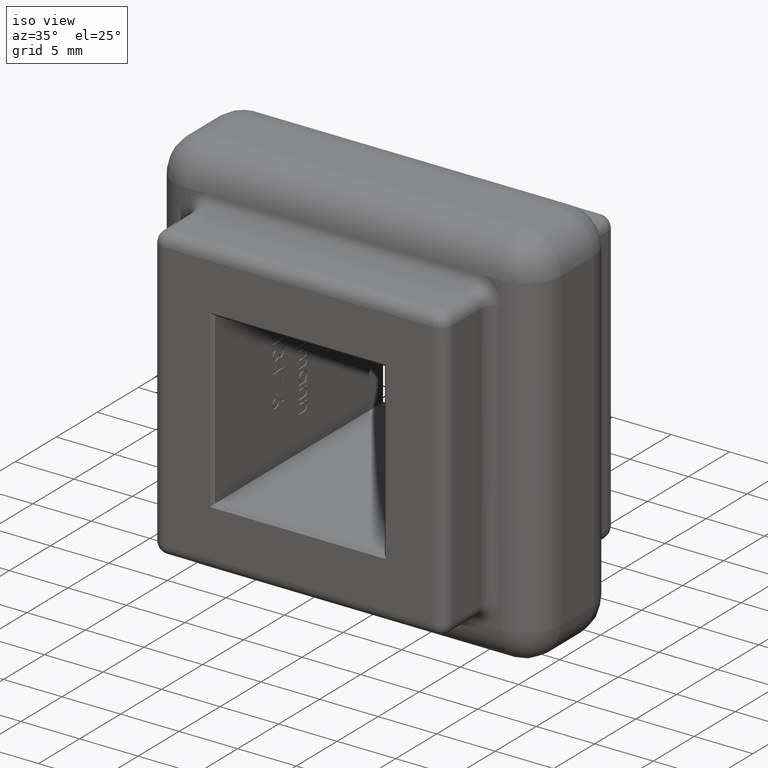
[diagram: clean part render]
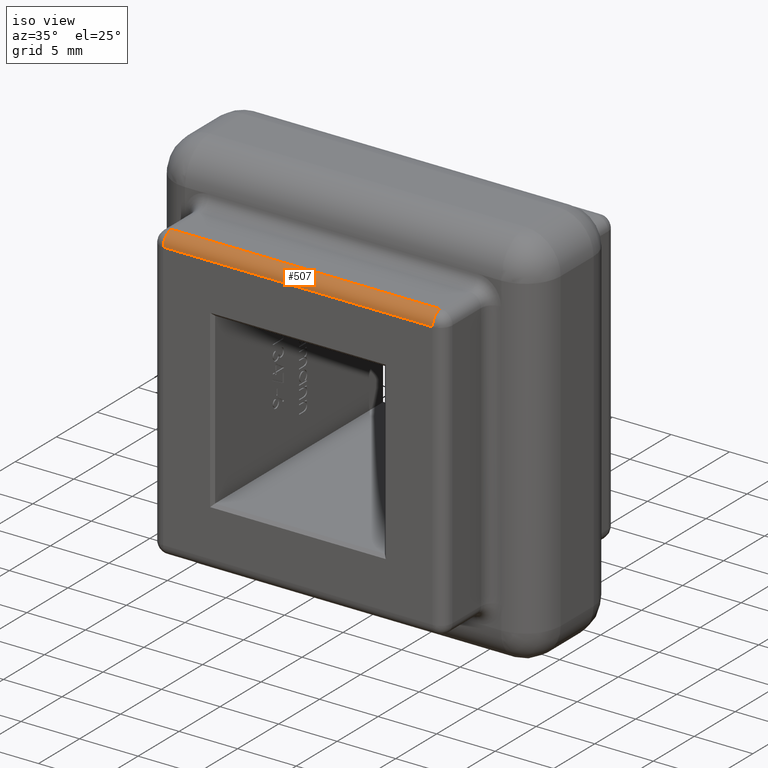
[diagram: same view with one face highlighted and labeled with its STEP entity id]
A machine part, iso view. The second image highlights one B-rep face of the part: STEP entity #507.
In plain terms, the highlighted cylindrical surface (edge-blend (fillet) strip) has radius 1 mm, axis along (1, 0, 0).
Its self-contained STEP definition (entity closure, byte-faithful):
#114 = EDGE_CURVE ( 'NONE', #9853, #7662, #11079, .T. ) ;
#507 = ADVANCED_FACE ( 'NONE', ( #2021 ), #802, .T. ) ;
#802 = CYLINDRICAL_SURFACE ( 'NONE', #4298, 1.000000000000000900 ) ;
#1503 = CARTESIAN_POINT ( 'NONE',  ( -11.49999999999999800, -10.49999999999999800, 11.50000000000000400 ) ) ;
#1705 = EDGE_LOOP ( 'NONE', ( #4238, #1844, #5286, #9819 ) ) ;
#1844 = ORIENTED_EDGE ( 'NONE', *, *, #114, .F. ) ;
#2021 = FACE_OUTER_BOUND ( 'NONE', #1705, .T. ) ;
#2489 = AXIS2_PLACEMENT_3D ( 'NONE', #10958, #3974, #3072 ) ;
#2654 = DIRECTION ( 'NONE',  ( -1.734723475976805500E-015, 1.000000000000000000, 0.0000000000000000000 ) ) ;
#2745 = CARTESIAN_POINT ( 'NONE',  ( -11.49999999999999800, -9.499999999999998200, 12.50000000000000200 ) ) ;
#3061 = CARTESIAN_POINT ( 'NONE',  ( -12.49999999999999600, -9.499999999999998200, 12.50000000000000200 ) ) ;
#3072 = DIRECTION ( 'NONE',  ( 0.0000000000000000000, 0.0000000000000000000, 1.000000000000000000 ) ) ;
#3149 = CARTESIAN_POINT ( 'NONE',  ( -12.49999999999999600, -9.499999999999998200, 11.50000000000000400 ) ) ;
#3786 = CIRCLE ( 'NONE', #10010, 1.000000000000000900 ) ;
#3974 = DIRECTION ( 'NONE',  ( -1.000000000000000000, 0.0000000000000000000, 0.0000000000000000000 ) ) ;
#4021 = VECTOR ( 'NONE', #4923, 1000.000000000000000 ) ;
#4238 = ORIENTED_EDGE ( 'NONE', *, *, #10283, .T. ) ;
#4298 = AXIS2_PLACEMENT_3D ( 'NONE', #3149, #9455, #9359 ) ;
#4923 = DIRECTION ( 'NONE',  ( -1.000000000000000000, -0.0000000000000000000, -0.0000000000000000000 ) ) ;
#5245 = VERTEX_POINT ( 'NONE', #7941 ) ;
#5286 = ORIENTED_EDGE ( 'NONE', *, *, #6645, .F. ) ;
#5749 = VERTEX_POINT ( 'NONE', #1503 ) ;
#6645 = EDGE_CURVE ( 'NONE', #5749, #9853, #8182, .T. ) ;
#7000 = DIRECTION ( 'NONE',  ( -1.000000000000000000, -1.734723475976805700E-015, 0.0000000000000000000 ) ) ;
#7115 = CARTESIAN_POINT ( 'NONE',  ( 11.50000000000000400, -9.499999999999998200, 11.50000000000000400 ) ) ;
#7360 = CARTESIAN_POINT ( 'NONE',  ( 11.50000000000000400, -9.499999999999998200, 12.50000000000000200 ) ) ;
#7662 = VERTEX_POINT ( 'NONE', #7360 ) ;
#7941 = CARTESIAN_POINT ( 'NONE',  ( 11.50000000000000500, -10.49999999999999800, 11.50000000000000400 ) ) ;
#8111 = EDGE_CURVE ( 'NONE', #5245, #5749, #9247, .T. ) ;
#8182 = CIRCLE ( 'NONE', #2489, 1.000000000000000900 ) ;
#8491 = CARTESIAN_POINT ( 'NONE',  ( 0.0000000000000000000, -10.49999999999999800, 11.50000000000000400 ) ) ;
#9247 = LINE ( 'NONE', #8491, #4021 ) ;
#9359 = DIRECTION ( 'NONE',  ( 0.0000000000000000000, 0.0000000000000000000, -1.000000000000000000 ) ) ;
#9455 = DIRECTION ( 'NONE',  ( 1.000000000000000000, 0.0000000000000000000, 0.0000000000000000000 ) ) ;
#9569 = VECTOR ( 'NONE', #10913, 1000.000000000000000 ) ;
#9819 = ORIENTED_EDGE ( 'NONE', *, *, #8111, .F. ) ;
#9853 = VERTEX_POINT ( 'NONE', #2745 ) ;
#10010 = AXIS2_PLACEMENT_3D ( 'NONE', #7115, #7000, #2654 ) ;
#10283 = EDGE_CURVE ( 'NONE', #5245, #7662, #3786, .T. ) ;
#10913 = DIRECTION ( 'NONE',  ( 1.000000000000000000, 0.0000000000000000000, 0.0000000000000000000 ) ) ;
#10958 = CARTESIAN_POINT ( 'NONE',  ( -11.49999999999999800, -9.499999999999998200, 11.50000000000000400 ) ) ;
#11079 = LINE ( 'NONE', #3061, #9569 ) ;